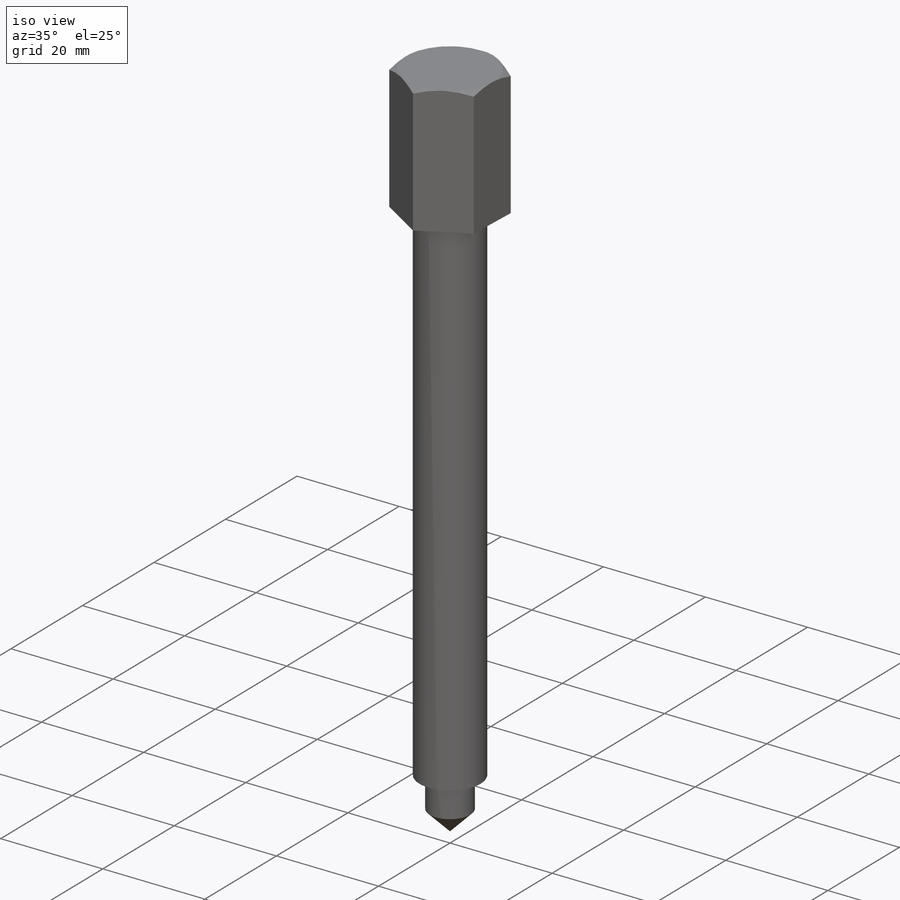
[diagram: iso view]
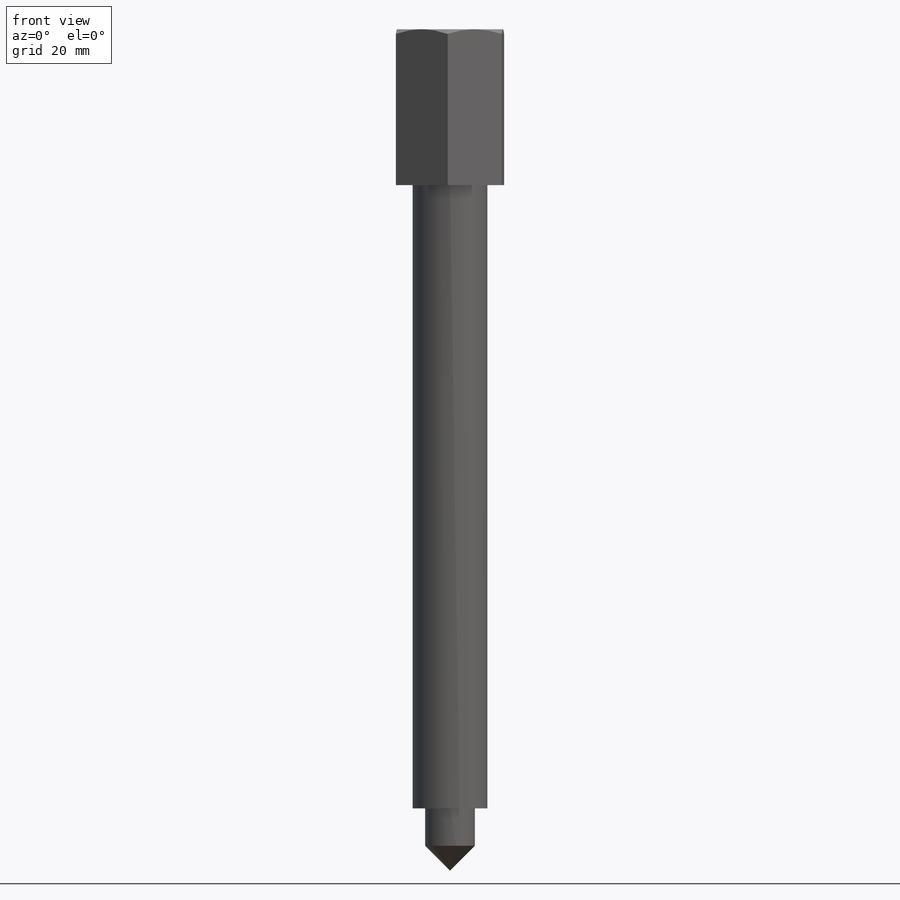
[diagram: front view]
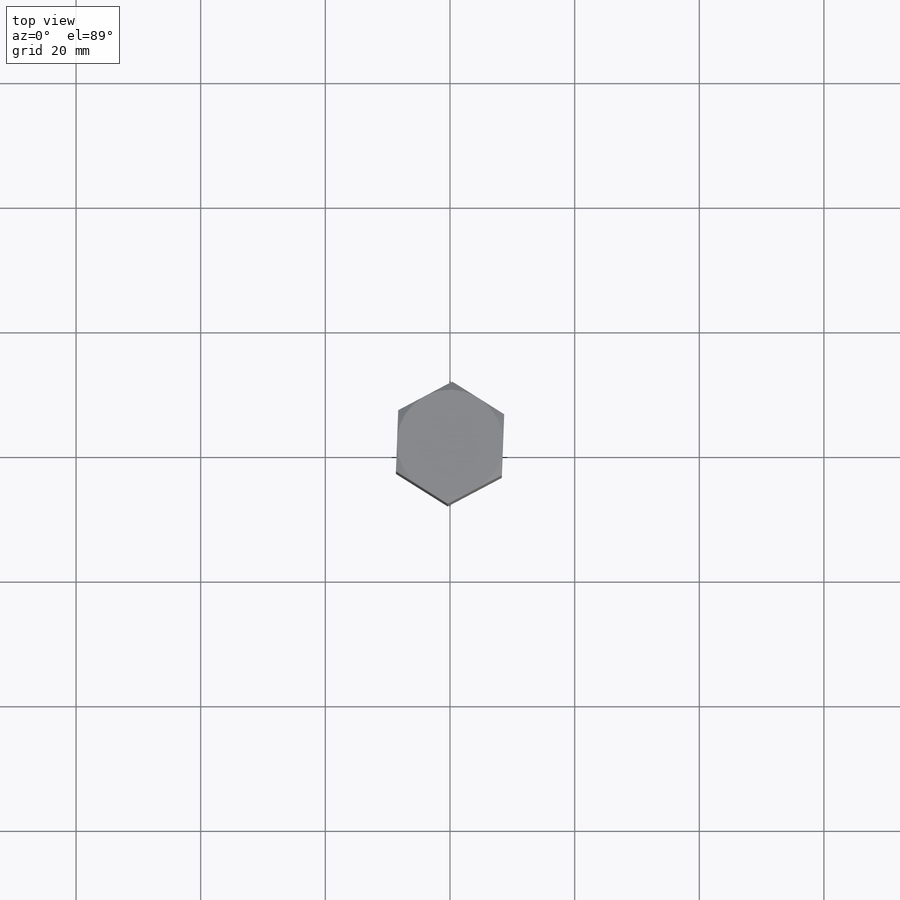
[diagram: top view]
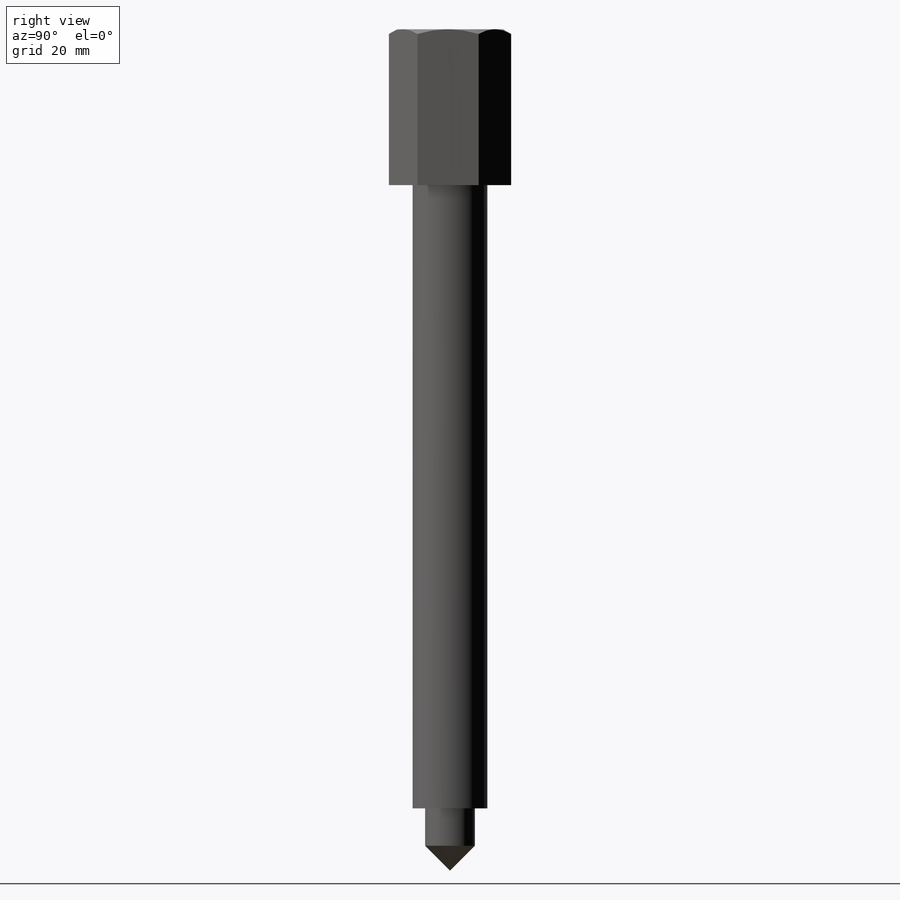
[diagram: right view]
SOLIDWORKS PART (.sldprt)
format: sldprt  version: not decoded by parser v0  size: 180,224 bytes
history: native  units: mm
features: plane x3, sketch x3, material x1, revolve x1, thread x1, extrude x1, cut_revolve x1 (+10 scaffold rows collapsed)
feature tree (21):
  scaffold x10  (default folders/planes/origin — collapsed)
  material  "Acero aleado"
  plane  "Alzado"
  plane  "Planta"
  plane  "Vista lateral"
  sketch  "Croquis1"  dims[c1.D1=110.0mm c1.D2=4.0mm c1.D3=10.0mm c1.D4=~4.93016mm c2.D4=45.0deg c2.D5=6.0mm]
  revolve  "Revolución3"  [1 undecoded]
  thread  "Rosca cosmética1"  Diameter=3.05mm  [1 undecoded]
  sketch  "Croquis2"  dims[D1=17.0mm]
  extrude  "Saliente-Extruir1"  Depth=25mm
  sketch  "Croquis3"  dims[c1.D1=1.0mm c1.D2=~6.004308mm c2.D2=30.0deg c3.D2=~5.22209mm c4.D2=30.0deg]
  cut_revolve  "Cortar-Revolución1"  Angle=360deg
decode coverage: 6 of 7 modeling features carry decoded parameters
note: ~ marks probable driven/reference dimensions
note: 2 parameter values undecoded
note: suppression state not decoded; provenance and decode notes live in map.json
